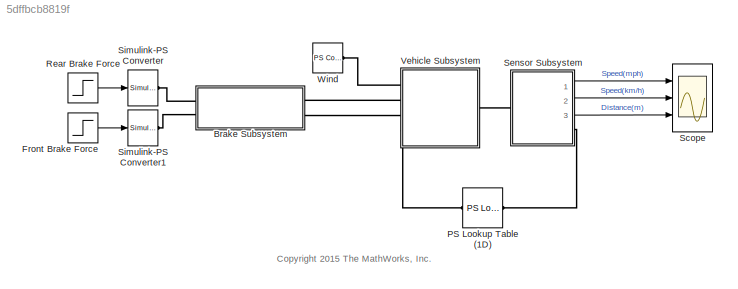
MODEL slx_5dffbcb8819f
KIND model
CONFIG AbsTol = 1e-3
CONFIG FixedStep = auto
CONFIG MaxStep = auto
CONFIG MinStep = auto
CONFIG RelTol = 1e-3
CONFIG SampleTimeConstraint = Unconstrained
CONFIG Solver = ode23t
CONFIG SolverMode = Auto
CONFIG SolverName = ode23t
CONFIG StartTime = 0.0
CONFIG StopTime = 75
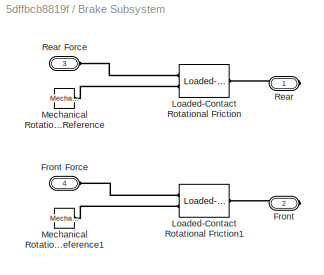
BLOCK [SubSystem] Brake Subsystem
  Ports = [0, 0, 0, 0, 0, 2, 2]
  RequestExecContextInheritance = off
BLOCK [PMIOPort] Brake Subsystem/Front
  Port = 2
  Side = Right
BLOCK [PMIOPort] Brake Subsystem/Front Force
  Port = 4
  Side = Left
BLOCK [Reference] Brake Subsystem/Loaded-Contact Rotational Friction  REF=sdl_lib/Brakes & Detents/Rotational/Loaded-Contact
Rotational Friction
  ClassName = rotational_friction
  ComponentPath = sdl.brakes.rotational.rotational_friction
  ComponentVariantNames = rotational_friction
  ComponentVariants = sdl.brakes.rotational.rotational_friction
  LogSimulationData = off
  Ports = [0, 0, 0, 0, 0, 2, 1]
  SchemaVersion = 1
  SourceBlock = sdl_lib/Brakes & Detents/Rotational/Loaded-Contact\nRotational Friction
  SourceFile = sdl.brakes.rotational.rotational_friction
  SourceType = Loaded-Contact\nRotational Friction
  d_i = 100
  d_i_unit = mm
  d_o = 150
  d_o_unit = mm
  force_min = 1
  force_min_unit = N
  friction_model = 1
  friction_model_unit = 1
  geometry_model = 1
  geometry_model_unit = 1
  initial_state_locked = 0
  initial_state_locked_unit = 1
  mu_coulomb = 0.3
  mu_coulomb_unit = 1
  mu_coulomb_vector = [ 0.29 0.28 0.26 0.22 0.21 0.2 0.2 0.19 0.19 0.19 0.19 0.19 ]
  mu_coulomb_vector_unit = 1
  mu_extrap_method = 1
  mu_extrap_method_unit = 1
  mu_interp_method = 1
  mu_interp_method_unit = 1
  mu_static = 0.35
  mu_static_unit = 1
  mu_visc = 0
  mu_visc_unit = N*m/(rad/s)
  mu_w_vector = [ 0 0.1 0.2 0.3 0.4 0.5 1 2 5 10 100 1000 ]
  mu_w_vector_unit = rad/s
  r_eff = 280
  r_eff_unit = mm
  w_tol = 0.001
  w_tol_unit = rad/s
BLOCK [Reference] Brake Subsystem/Loaded-Contact Rotational Friction1  REF=sdl_lib/Brakes & Detents/Rotational/Loaded-Contact
Rotational Friction
  ClassName = rotational_friction
  ComponentPath = sdl.brakes.rotational.rotational_friction
  ComponentVariantNames = rotational_friction
  ComponentVariants = sdl.brakes.rotational.rotational_friction
  LogSimulationData = off
  Ports = [0, 0, 0, 0, 0, 2, 1]
  SchemaVersion = 1
  SourceBlock = sdl_lib/Brakes & Detents/Rotational/Loaded-Contact\nRotational Friction
  SourceFile = sdl.brakes.rotational.rotational_friction
  SourceType = Loaded-Contact\nRotational Friction
  d_i = 100
  d_i_unit = mm
  d_o = 150
  d_o_unit = mm
  force_min = 1
  force_min_unit = N
  friction_model = 1
  friction_model_unit = 1
  geometry_model = 1
  geometry_model_unit = 1
  initial_state_locked = 0
  initial_state_locked_unit = 1
  mu_coulomb = 0.3
  mu_coulomb_unit = 1
  mu_coulomb_vector = [ 0.29 0.28 0.26 0.22 0.21 0.2 0.2 0.19 0.19 0.19 0.19 0.19 ]
  mu_coulomb_vector_unit = 1
  mu_extrap_method = 1
  mu_extrap_method_unit = 1
  mu_interp_method = 1
  mu_interp_method_unit = 1
  mu_static = 0.35
  mu_static_unit = 1
  mu_visc = 0
  mu_visc_unit = N*m/(rad/s)
  mu_w_vector = [ 0 0.1 0.2 0.3 0.4 0.5 1 2 5 10 100 1000 ]
  mu_w_vector_unit = rad/s
  r_eff = 280
  r_eff_unit = mm
  w_tol = 0.001
  w_tol_unit = rad/s
BLOCK [Reference] Brake Subsystem/Mechanical Rotational Reference  REF=fl_lib/Mechanical/Rotational Elements/Mechanical
Rotational Reference
  ClassName = reference
  ComponentPath = foundation.mechanical.rotational.reference
  ComponentVariantNames = reference
  ComponentVariants = foundation.mechanical.rotational.reference
  LogSimulationData = off
  Ports = [0, 0, 0, 0, 0, 1]
  SchemaVersion = 1
  SourceBlock = fl_lib/Mechanical/Rotational Elements/Mechanical\nRotational Reference
  SourceFile = foundation.mechanical.rotational.reference
  SourceType = Mechanical\nRotational Reference
BLOCK [Reference] Brake Subsystem/Mechanical Rotational Reference1  REF=fl_lib/Mechanical/Rotational Elements/Mechanical
Rotational Reference
  ClassName = reference
  ComponentPath = foundation.mechanical.rotational.reference
  ComponentVariantNames = reference
  ComponentVariants = foundation.mechanical.rotational.reference
  LogSimulationData = off
  Ports = [0, 0, 0, 0, 0, 1]
  SchemaVersion = 1
  SourceBlock = fl_lib/Mechanical/Rotational Elements/Mechanical\nRotational Reference
  SourceFile = foundation.mechanical.rotational.reference
  SourceType = Mechanical\nRotational Reference
BLOCK [PMIOPort] Brake Subsystem/Rear
  Port = 1
  Side = Right
BLOCK [PMIOPort] Brake Subsystem/Rear Force
  Port = 3
  Side = Left
BLOCK [Step] Front Brake Force
  After = 200
  AttributesFormatString = %<After>N at %<Time>s
  SampleTime = 0
  Time = 25
BLOCK [Reference] PS Lookup Table (1D)  REF=fl_lib/Physical Signals/Lookup Tables/PS Lookup Table (1D)
  ClassName = one_dimensional
  ComponentPath = foundation.physical_signal.lookup_tables.one_dimensional
  ComponentVariantNames = one_dimensional
  ComponentVariants = foundation.physical_signal.lookup_tables.one_dimensional
  LogSimulationData = off
  Ports = [0, 0, 0, 0, 0, 1, 1]
  SchemaVersion = 1
  SourceBlock = fl_lib/Physical Signals/Lookup Tables/PS Lookup Table (1D)
  SourceFile = foundation.physical_signal.lookup_tables.one_dimensional
  SourceType = PS Lookup Table (1D)
  extrap_method = 1
  extrap_method_unit = 1
  interp_method = 1
  interp_method_unit = 1
  x_t = dist
  x_t_unit = 1
  y_t = slope
  y_t_unit = 1
BLOCK [Step] Rear Brake Force
  After = 100
  AttributesFormatString = %<After>N at %<Time>s
  SampleTime = 0
  Time = 20
BLOCK [Scope] Scope
  Floating = off
  LimitDataPoints = off
  NumInputPorts = 3
  Ports = [3]
  SaveName = ScopeData1
  YMax = 5~5~5
  YMin = -5~-5~-5
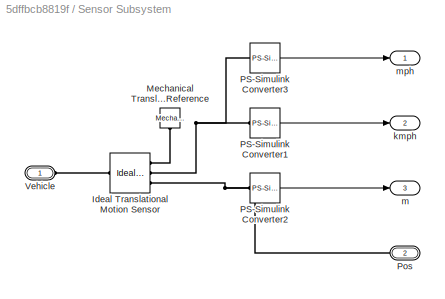
BLOCK [SubSystem] Sensor Subsystem
  Ports = [0, 3, 0, 0, 0, 1, 1]
  RequestExecContextInheritance = off
BLOCK [Reference] Sensor Subsystem/Ideal Translational Motion Sensor  REF=fl_lib/Mechanical/Mechanical Sensors/Ideal Translational
Motion Sensor
  ClassName = velocity
  ComponentPath = foundation.mechanical.sensors.velocity
  ComponentVariantNames = velocity
  ComponentVariants = foundation.mechanical.sensors.velocity
  LogSimulationData = off
  Ports = [0, 0, 0, 0, 0, 1, 3]
  SchemaVersion = 1
  SourceBlock = fl_lib/Mechanical/Mechanical Sensors/Ideal Translational\nMotion Sensor
  SourceFile = foundation.mechanical.sensors.velocity
  SourceType = Ideal Translational\nMotion Sensor
  offset = 0
  offset_unit = m
BLOCK [Reference] Sensor Subsystem/Mechanical Translational Reference  REF=fl_lib/Mechanical/Translational
Elements/Mechanical
Translational
Reference
  ClassName = reference
  ComponentPath = foundation.mechanical.translational.reference
  ComponentVariantNames = reference
  ComponentVariants = foundation.mechanical.translational.reference
  LogSimulationData = off
  Ports = [0, 0, 0, 0, 0, 1]
  SchemaVersion = 1
  SourceBlock = fl_lib/Mechanical/Translational\nElements/Mechanical\nTranslational\nReference
  SourceFile = foundation.mechanical.translational.reference
  SourceType = Mechanical\nTranslational\nReference
BLOCK [Reference] Sensor Subsystem/PS-Simulink Converter1  REF=nesl_utility/PS-Simulink
Converter
  AffineConversion = off
  Frequencies = []
  LeftPortType = input
  PhysicalDomain = network_engine_domain
  Ports = [0, 1, 0, 0, 0, 1]
  PseudoPeriodic = off
  RightPortType = output
  SourceBlock = nesl_utility/PS-Simulink\nConverter
  SourceType = PS-Simulink\nConverter
  SubClassName = ps_output
  Unit = km/hr
BLOCK [Reference] Sensor Subsystem/PS-Simulink Converter2  REF=nesl_utility/PS-Simulink
Converter
  AffineConversion = off
  Frequencies = []
  LeftPortType = input
  PhysicalDomain = network_engine_domain
  Ports = [0, 1, 0, 0, 0, 1]
  PseudoPeriodic = off
  RightPortType = output
  SourceBlock = nesl_utility/PS-Simulink\nConverter
  SourceType = PS-Simulink\nConverter
  SubClassName = ps_output
  Unit = 1
BLOCK [Reference] Sensor Subsystem/PS-Simulink Converter3  REF=nesl_utility/PS-Simulink
Converter
  AffineConversion = off
  Frequencies = []
  LeftPortType = input
  PhysicalDomain = network_engine_domain
  Ports = [0, 1, 0, 0, 0, 1]
  PseudoPeriodic = off
  RightPortType = output
  SourceBlock = nesl_utility/PS-Simulink\nConverter
  SourceType = PS-Simulink\nConverter
  SubClassName = ps_output
  Unit = mph
BLOCK [PMIOPort] Sensor Subsystem/Pos
  Port = 2
  Side = Right
BLOCK [PMIOPort] Sensor Subsystem/Vehicle
  Port = 1
  Side = Left
BLOCK [Outport] Sensor Subsystem/kmph
  IconDisplay = Port number
  Port = 2
BLOCK [Outport] Sensor Subsystem/m
  IconDisplay = Port number
  Port = 3
BLOCK [Outport] Sensor Subsystem/mph
  IconDisplay = Port number
BLOCK [Reference] Simulink-PS Converter  REF=nesl_utility/Simulink-PS
Converter
  AffineConversion = off
  Frequencies = []
  InputFilterTimeConstant = 0.001
  InputFiltering = on
  LeftPortType = input
  NoiseDistribution = none
  NoiseParameters = []
  PhysicalDomain = network_engine_domain
  Ports = [1, 0, 0, 0, 0, 0, 1]
  PseudoPeriodic = off
  RightPortType = output
  SimscapeFilterOrder = 1
  SourceBlock = nesl_utility/Simulink-PS\nConverter
  SourceType = Simulink-PS\nConverter
  SubClassName = ps_input
  UdotUserProvided = 1
  Unit = 1
BLOCK [Reference] Simulink-PS Converter1  REF=nesl_utility/Simulink-PS
Converter
  AffineConversion = off
  Frequencies = []
  InputFilterTimeConstant = 0.001
  InputFiltering = on
  LeftPortType = input
  NoiseDistribution = none
  NoiseParameters = []
  PhysicalDomain = network_engine_domain
  Ports = [1, 0, 0, 0, 0, 0, 1]
  PseudoPeriodic = off
  RightPortType = output
  SimscapeFilterOrder = 1
  SourceBlock = nesl_utility/Simulink-PS\nConverter
  SourceType = Simulink-PS\nConverter
  SubClassName = ps_input
  UdotUserProvided = 1
  Unit = 1
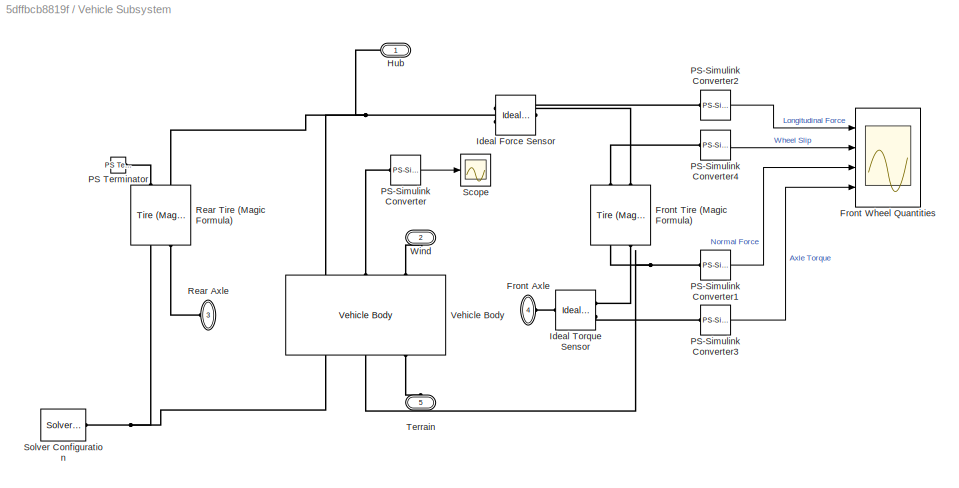
BLOCK [SubSystem] Vehicle Subsystem
  Ports = [0, 0, 0, 0, 0, 4, 1]
  RequestExecContextInheritance = off
BLOCK [PMIOPort] Vehicle Subsystem/Front Axle
  Port = 4
  Side = Left
BLOCK [Reference] Vehicle Subsystem/Front Tire (Magic Formula)  REF=sdl_lib/Tires & Vehicles/Tire (Magic Formula)
  B_m = tire_b
  B_m_unit = 1
  C_m = tire_c
  C_m_unit = 1
  ClassName = tire_magic
  ComponentPath = sdl.tires.tire_magic
  ComponentVariantNames = tire_magic
  ComponentVariants = sdl.tires.tire_magic
  D_m = tire_d
  D_m_unit = 1
  E_m = tire_e
  E_m_unit = 1
  F_x1 = 3.5e+3
  F_x1_unit = N
  F_z1 = 3e+3
  F_z1_unit = N
  LogSimulationData = off
  Ports = [0, 0, 0, 0, 0, 2, 2]
  SchemaVersion = 1
  SourceBlock = sdl_lib/Tires & Vehicles/Tire (Magic Formula)
  SourceFile = sdl.tires.tire_magic
  SourceType = Tire (Magic Formula)
  alpha = -0.003
  alpha_unit = 1
  beta = 0.97
  beta_unit = 1
  coeff = roll_resist
  coeff_a = 84e-4
  coeff_a_unit = 1
  coeff_b = 6.2e-4
  coeff_b_unit = s/m
  coeff_c = 1.6e-4
  coeff_c_unit = s^2/m^2
  coeff_unit = 1
  damping = 1000
  damping_unit = N/(m/s)
  fz0 = 4e+3
  fz0_unit = N
  inertia = tire_inertia
  inertia_unit = kg*m^2
  initial_velocity = 0
  initial_velocity_unit = rad/s
  kappa1 = 10
  kappa1_unit = 1
  model_compliance = 0
  model_compliance_unit = 1
  model_inertia = 1
  model_inertia_unit = 1
  model_resistance = 1
  model_resistance_unit = 1
  p_Cx = 1.685
  p_Cx_unit = 1
  p_Dx = [ 1.21 -0.037 ]
  p_Dx_unit = 1
  p_Ex = [ 0.344 0.095 -0.02 0 ]
  p_Ex_unit = 1
  p_Hx = [ -0.002 0.002 ]
  p_Hx_unit = 1
  p_Kx = [ 21.51 -0.163 0.245 ]
  p_Kx_unit = 1
  p_Vx = [ 0 0 ]
  p_Vx_unit = 1
  p_tire = 250e3
  p_tire_unit = Pa
  parameterization = 2
  parameterization_unit = 1
  r_e = tire_dia/2
  r_e_unit = in
  resistance_model = 1
  resistance_model_unit = 1
  stiffness = 1e+6
  stiffness_unit = N/m
  v_thr = 1e-3
  v_thr_unit = m/s
  v_tr_thr = 0.1
  v_tr_thr_unit = m/s
BLOCK [Scope] Vehicle Subsystem/Front Wheel Quantities
  DataFormat = StructureWithTime
  Floating = off
  NumInputPorts = 4
  Ports = [4]
  SampleTime = 0
  SaveName = ScopeData3
  TimeRange = 75
  YMax = 46.19404070580568~0.0003082650279803026~1497.845744680851~48.06634367574588
  YMin = -1.739899074664905~-0.00106484112383577~1490.505319148936~-500.1976734211385
  ZoomMode = yonly
BLOCK [PMIOPort] Vehicle Subsystem/Hub
  Port = 1
  Side = Right
BLOCK [Reference] Vehicle Subsystem/Ideal Force Sensor  REF=fl_lib/Mechanical/Mechanical Sensors/Ideal Force Sensor
  ClassName = force
  ComponentPath = foundation.mechanical.sensors.force
  ComponentVariantNames = force
  ComponentVariants = foundation.mechanical.sensors.force
  LogSimulationData = off
  Ports = [0, 0, 0, 0, 0, 1, 2]
  SchemaVersion = 1
  SourceBlock = fl_lib/Mechanical/Mechanical Sensors/Ideal Force Sensor
  SourceFile = foundation.mechanical.sensors.force
  SourceType = Ideal Force Sensor
BLOCK [Reference] Vehicle Subsystem/Ideal Torque Sensor  REF=fl_lib/Mechanical/Mechanical Sensors/Ideal Torque Sensor
  ClassName = torque
  ComponentPath = foundation.mechanical.sensors.torque
  ComponentVariantNames = torque
  ComponentVariants = foundation.mechanical.sensors.torque
  LogSimulationData = off
  Ports = [0, 0, 0, 0, 0, 1, 2]
  SchemaVersion = 1
  SourceBlock = fl_lib/Mechanical/Mechanical Sensors/Ideal Torque Sensor
  SourceFile = foundation.mechanical.sensors.torque
  SourceType = Ideal Torque Sensor
BLOCK [Reference] Vehicle Subsystem/PS Terminator  REF=fl_lib/Physical Signals/Sinks/PS Terminator
  ClassName = terminator
  ComponentPath = foundation.physical_signal.sinks.terminator
  ComponentVariantNames = terminator
  ComponentVariants = foundation.physical_signal.sinks.terminator
  LogSimulationData = off
  Ports = [0, 0, 0, 0, 0, 1]
  SchemaVersion = 1
  SourceBlock = fl_lib/Physical Signals/Sinks/PS Terminator
  SourceFile = foundation.physical_signal.sinks.terminator
  SourceType = PS Terminator
BLOCK [Reference] Vehicle Subsystem/PS-Simulink Converter  REF=nesl_utility/PS-Simulink
Converter
  AffineConversion = off
  Frequencies = []
  LeftPortType = input
  PhysicalDomain = network_engine_domain
  Ports = [0, 1, 0, 0, 0, 1]
  PseudoPeriodic = off
  RightPortType = output
  SourceBlock = nesl_utility/PS-Simulink\nConverter
  SourceType = PS-Simulink\nConverter
  SubClassName = ps_output
  Unit = 1
BLOCK [Reference] Vehicle Subsystem/PS-Simulink Converter1  REF=nesl_utility/PS-Simulink
Converter
  AffineConversion = off
  Frequencies = []
  LeftPortType = input
  PhysicalDomain = network_engine_domain
  Ports = [0, 1, 0, 0, 0, 1]
  PseudoPeriodic = off
  RightPortType = output
  SourceBlock = nesl_utility/PS-Simulink\nConverter
  SourceType = PS-Simulink\nConverter
  SubClassName = ps_output
  Unit = N
BLOCK [Reference] Vehicle Subsystem/PS-Simulink Converter2  REF=nesl_utility/PS-Simulink
Converter
  AffineConversion = off
  Frequencies = []
  LeftPortType = input
  PhysicalDomain = network_engine_domain
  Ports = [0, 1, 0, 0, 0, 1]
  PseudoPeriodic = off
  RightPortType = output
  SourceBlock = nesl_utility/PS-Simulink\nConverter
  SourceType = PS-Simulink\nConverter
  SubClassName = ps_output
  Unit = N
BLOCK [Reference] Vehicle Subsystem/PS-Simulink Converter3  REF=nesl_utility/PS-Simulink
Converter
  AffineConversion = off
  Frequencies = []
  LeftPortType = input
  PhysicalDomain = network_engine_domain
  Ports = [0, 1, 0, 0, 0, 1]
  PseudoPeriodic = off
  RightPortType = output
  SourceBlock = nesl_utility/PS-Simulink\nConverter
  SourceType = PS-Simulink\nConverter
  SubClassName = ps_output
  Unit = N*m
BLOCK [Reference] Vehicle Subsystem/PS-Simulink Converter4  REF=nesl_utility/PS-Simulink
Converter
  AffineConversion = off
  Frequencies = []
  LeftPortType = input
  PhysicalDomain = network_engine_domain
  Ports = [0, 1, 0, 0, 0, 1]
  PseudoPeriodic = off
  RightPortType = output
  SourceBlock = nesl_utility/PS-Simulink\nConverter
  SourceType = PS-Simulink\nConverter
  SubClassName = ps_output
  Unit = N
BLOCK [PMIOPort] Vehicle Subsystem/Rear Axle
  Port = 3
  Side = Left
BLOCK [Reference] Vehicle Subsystem/Rear Tire (Magic Formula)  REF=sdl_lib/Tires & Vehicles/Tire (Magic Formula)
  B_m = tire_b
  B_m_unit = 1
  C_m = tire_c
  C_m_unit = 1
  ClassName = tire_magic
  ComponentPath = sdl.tires.tire_magic
  ComponentVariantNames = tire_magic
  ComponentVariants = sdl.tires.tire_magic
  D_m = tire_d
  D_m_unit = 1
  E_m = tire_e
  E_m_unit = 1
  F_x1 = 3.5e+3
  F_x1_unit = N
  F_z1 = 3e+3
  F_z1_unit = N
  LogSimulationData = off
  Ports = [0, 0, 0, 0, 0, 2, 2]
  SchemaVersion = 1
  SourceBlock = sdl_lib/Tires & Vehicles/Tire (Magic Formula)
  SourceFile = sdl.tires.tire_magic
  SourceType = Tire (Magic Formula)
  alpha = -0.003
  alpha_unit = 1
  beta = 0.97
  beta_unit = 1
  coeff = roll_resist
  coeff_a = 84e-4
  coeff_a_unit = 1
  coeff_b = 6.2e-4
  coeff_b_unit = s/m
  coeff_c = 1.6e-4
  coeff_c_unit = s^2/m^2
  coeff_unit = 1
  damping = 1000
  damping_unit = N/(m/s)
  fz0 = 4e+3
  fz0_unit = N
  inertia = tire_inertia
  inertia_unit = kg*m^2
  initial_velocity = 0
  initial_velocity_unit = rad/s
  kappa1 = 10
  kappa1_unit = 1
  model_compliance = 0
  model_compliance_unit = 1
  model_inertia = 1
  model_inertia_unit = 1
  model_resistance = 1
  model_resistance_unit = 1
  p_Cx = 1.685
  p_Cx_unit = 1
  p_Dx = [ 1.21 -0.037 ]
  p_Dx_unit = 1
  p_Ex = [ 0.344 0.095 -0.02 0 ]
  p_Ex_unit = 1
  p_Hx = [ -0.002 0.002 ]
  p_Hx_unit = 1
  p_Kx = [ 21.51 -0.163 0.245 ]
  p_Kx_unit = 1
  p_Vx = [ 0 0 ]
  p_Vx_unit = 1
  p_tire = 250e3
  p_tire_unit = Pa
  parameterization = 2
  parameterization_unit = 1
  r_e = tire_dia/2
  r_e_unit = in
  resistance_model = 1
  resistance_model_unit = 1
  stiffness = 1e+6
  stiffness_unit = N/m
  v_thr = 1e-3
  v_thr_unit = m/s
  v_tr_thr = 0.1
  v_tr_thr_unit = m/s
BLOCK [Scope] Vehicle Subsystem/Scope
  Floating = off
  NumInputPorts = 1
  Ports = [1]
BLOCK [Reference] Vehicle Subsystem/Solver Configuration  REF=nesl_utility/Solver
Configuration
  AbsTol = 1e-06
  Accelerate = off
  AutomaticFiltering = on
  DelaysMemoryBudget = 1024
  DoDC = off
  DoFixedCost = off
  EnableSwitchedLinearOptims = on
  FilteringTimeConstant = 0.001
  FrequencyDomain = off
  Harmonics = []
  LeftPortType = input
  LinearAlgebra = Sparse
  LocalSolverChoice = NE_BACKWARD_EULER_ADVANCER
  LocalSolverSampleTime = 0.001
  MaxModeIter = 2
  MaxNonlinIter = 3
  MinStep = 1e-09
  NumHomotopyIterations = 100
  PhysicalDomain = network_engine_domain
  Ports = [0, 0, 0, 0, 0, 0, 1]
  Profile = off
  RelTol = 0.001
  ResidualTolerance = 1e-09
  RevertToSquareIcSolve = off
  RightPortType = generic
  SimulateNoise = off
  SourceBlock = nesl_utility/Solver\nConfiguration
  SourceType = Solver\nConfiguration
  SubClassName = solver
  ToWorkspace = off
  Tones = []
  UseCCode = off
  UseLocalSampling = off
  UseLocalSolver = off
BLOCK [PMIOPort] Vehicle Subsystem/Terrain
  Port = 5
  Side = Left
BLOCK [Reference] Vehicle Subsystem/Vehicle Body  REF=sdl_lib/Tires & Vehicles/Vehicle Body
  Cd = drag_coeff
  Cd_unit = 1
  ClassName = vehicle_body
  ComponentPath = sdl.tires.vehicle_body
  ComponentVariantNames = vehicle_body
  ComponentVariants = sdl.tires.vehicle_body
  LogSimulationData = off
  Ports = [0, 0, 0, 0, 0, 3, 3]
  SchemaVersion = 1
  SourceBlock = sdl_lib/Tires & Vehicles/Vehicle Body
  SourceFile = sdl.tires.vehicle_body
  SourceType = Vehicle Body
  area = front_area
  area_unit = m^2
  g = 9.81
  g_unit = m/s^2
  mass = rider_mass + vehicle_mass
  mass_unit = kg
  n_w = 1
  n_w_unit = 1
  rho = 1.18
  rho_unit = kg/m^3
  v0 = 0
  v0_unit = m/s
  x_f = front_axle
  x_f_unit = mm
  x_r = rear_axle
  x_r_unit = mm
  y_c = CG_height
  y_c_unit = mm
BLOCK [PMIOPort] Vehicle Subsystem/Wind
  Port = 2
  Side = Left
BLOCK [Reference] Wind  REF=fl_lib/Physical Signals/Sources/PS Constant
  ClassName = constant
  ComponentPath = foundation.physical_signal.sources.constant
  ComponentVariantNames = constant
  ComponentVariants = foundation.physical_signal.sources.constant
  LogSimulationData = off
  Ports = [0, 0, 0, 0, 0, 0, 1]
  SchemaVersion = 1
  SourceBlock = fl_lib/Physical Signals/Sources/PS Constant
  SourceFile = foundation.physical_signal.sources.constant
  SourceType = PS Constant
  constant = 0
  constant_unit = 1
ANNOTATION (root): <copyright redacted>
LINE Front Brake Force:1 -> Simulink-PS Converter1:1
LINE Rear Brake Force:1 -> Simulink-PS Converter:1
LINE Sensor Subsystem/PS-Simulink Converter1:1 -> Sensor Subsystem/kmph:1
LINE Sensor Subsystem/PS-Simulink Converter2:1 -> Sensor Subsystem/m:1
LINE Sensor Subsystem/PS-Simulink Converter3:1 -> Sensor Subsystem/mph:1
LINE Sensor Subsystem:1 -> Scope:1
LINE Sensor Subsystem:2 -> Scope:2
LINE Sensor Subsystem:3 -> Scope:3
LINE Vehicle Subsystem/PS-Simulink Converter1:1 -> Vehicle Subsystem/Front Wheel Quantities:3
LINE Vehicle Subsystem/PS-Simulink Converter2:1 -> Vehicle Subsystem/Front Wheel Quantities:1
LINE Vehicle Subsystem/PS-Simulink Converter3:1 -> Vehicle Subsystem/Front Wheel Quantities:4
LINE Vehicle Subsystem/PS-Simulink Converter4:1 -> Vehicle Subsystem/Front Wheel Quantities:2
LINE Vehicle Subsystem/PS-Simulink Converter:1 -> Vehicle Subsystem/Scope:1
PLINE Brake Subsystem/Front Force:RConn1 -- Brake Subsystem/Loaded-Contact Rotational Friction1:LConn1
PLINE Brake Subsystem/Front:RConn1 -- Brake Subsystem/Loaded-Contact Rotational Friction1:RConn1
PLINE Brake Subsystem/Loaded-Contact Rotational Friction1:LConn2 -- Brake Subsystem/Mechanical Rotational Reference1:LConn1
PLINE Brake Subsystem/Loaded-Contact Rotational Friction:LConn1 -- Brake Subsystem/Rear Force:RConn1
PLINE Brake Subsystem/Loaded-Contact Rotational Friction:LConn2 -- Brake Subsystem/Mechanical Rotational Reference:LConn1
PLINE Brake Subsystem/Loaded-Contact Rotational Friction:RConn1 -- Brake Subsystem/Rear:RConn1
PLINE Brake Subsystem:LConn1 -- Simulink-PS Converter:RConn1
PLINE Brake Subsystem:LConn2 -- Simulink-PS Converter1:RConn1
PLINE Brake Subsystem:RConn1 -- Vehicle Subsystem:LConn2
PLINE Brake Subsystem:RConn2 -- Vehicle Subsystem:LConn3
PLINE PS Lookup Table (1D):LConn1 -- Sensor Subsystem:RConn1
PLINE PS Lookup Table (1D):RConn1 -- Vehicle Subsystem:LConn4
PLINE Sensor Subsystem/Ideal Translational Motion Sensor:LConn1 -- Sensor Subsystem/Vehicle:RConn1
PLINE Sensor Subsystem/Ideal Translational Motion Sensor:RConn1 -- Sensor Subsystem/Mechanical Translational Reference:LConn1
PNET net1: Sensor Subsystem/Ideal Translational Motion Sensor:RConn2 -- Sensor Subsystem/PS-Simulink Converter1:LConn1 -- Sensor Subsystem/PS-Simulink Converter3:LConn1
PNET net2: Sensor Subsystem/Ideal Translational Motion Sensor:RConn3 -- Sensor Subsystem/PS-Simulink Converter2:LConn1 -- Sensor Subsystem/Pos:RConn1
PLINE Sensor Subsystem:LConn1 -- Vehicle Subsystem:RConn1
PLINE Vehicle Subsystem/Front Axle:RConn1 -- Vehicle Subsystem/Ideal Torque Sensor:LConn1
PNET net3: Vehicle Subsystem/Front Tire (Magic Formula):LConn1 -- Vehicle Subsystem/PS-Simulink Converter1:LConn1 -- Vehicle Subsystem/Vehicle Body:RConn2
PLINE Vehicle Subsystem/Front Tire (Magic Formula):LConn2 -- Vehicle Subsystem/Ideal Torque Sensor:RConn1
PLINE Vehicle Subsystem/Front Tire (Magic Formula):RConn1 -- Vehicle Subsystem/PS-Simulink Converter4:LConn1
PLINE Vehicle Subsystem/Front Tire (Magic Formula):RConn2 -- Vehicle Subsystem/Ideal Force Sensor:RConn1
PNET net4: Vehicle Subsystem/Hub:RConn1 -- Vehicle Subsystem/Ideal Force Sensor:LConn1 -- Vehicle Subsystem/Rear Tire (Magic Formula):RConn2 -- Vehicle Subsystem/Vehicle Body:LConn1
PLINE Vehicle Subsystem/Ideal Force Sensor:RConn2 -- Vehicle Subsystem/PS-Simulink Converter2:LConn1
PLINE Vehicle Subsystem/Ideal Torque Sensor:RConn2 -- Vehicle Subsystem/PS-Simulink Converter3:LConn1
PLINE Vehicle Subsystem/PS Terminator:LConn1 -- Vehicle Subsystem/Rear Tire (Magic Formula):RConn1
PLINE Vehicle Subsystem/PS-Simulink Converter:LConn1 -- Vehicle Subsystem/Vehicle Body:LConn2
PLINE Vehicle Subsystem/Rear Axle:RConn1 -- Vehicle Subsystem/Rear Tire (Magic Formula):LConn2
PNET net5: Vehicle Subsystem/Rear Tire (Magic Formula):LConn1 -- Vehicle Subsystem/Solver Configuration:RConn1 -- Vehicle Subsystem/Vehicle Body:RConn1
PLINE Vehicle Subsystem/Terrain:RConn1 -- Vehicle Subsystem/Vehicle Body:RConn3
PLINE Vehicle Subsystem/Vehicle Body:LConn3 -- Vehicle Subsystem/Wind:RConn1
PLINE Vehicle Subsystem:LConn1 -- Wind:RConn1
note: PNET lines group multi-terminal physical nets as a canonical sorted terminal list (undirected conserving connections); 2-terminal nets keep the pairwise PLINE form
